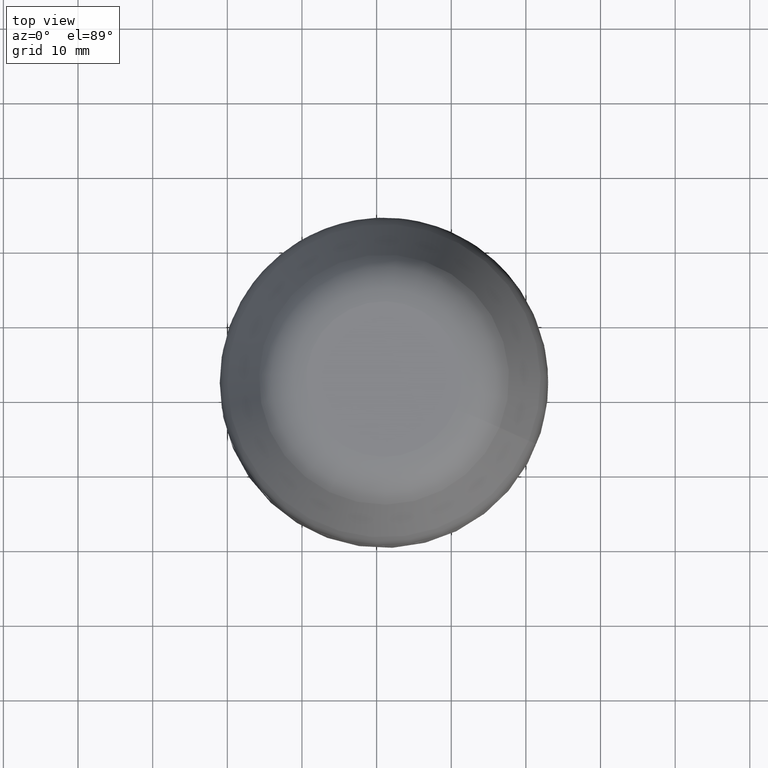
[diagram: clean part render]
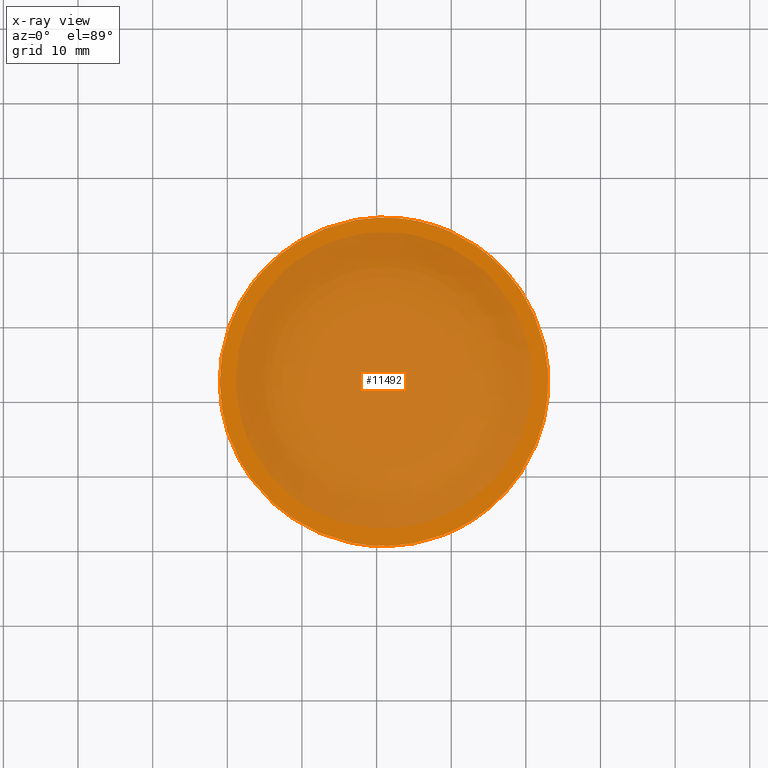
[diagram: x-ray — body ghosted, one internal face saturated and labeled with its STEP entity id]
A machine part, top view, then the same camera in x-ray: the body is ghosted and one INTERNAL B-rep face — a face not visible from any outside direction — is saturated and labeled: STEP entity #11492.
In plain terms, the highlighted face is a freeform B-spline surface patch.
Its self-contained STEP definition (entity closure, byte-faithful):
#73=B_SPLINE_SURFACE_WITH_KNOTS('',3,3,((#82023,#82024,#82025,#82026),(#82027,
#82028,#82029,#82030),(#82031,#82032,#82033,#82034),(#82035,#82036,#82037,
#82038)),.UNSPECIFIED.,.F.,.F.,.F.,(4,4),(4,4),(0.,1.),(0.,1.),.UNSPECIFIED.);
#1144=B_SPLINE_CURVE_WITH_KNOTS('',3,(#81895,#81896,#81897,#81898,#81899,
#81900,#81901,#81902,#81903,#81904,#81905,#81906,#81907,#81908,#81909,#81910,
#81911,#81912,#81913,#81914,#81915,#81916,#81917,#81918,#81919,#81920,#81921,
#81922,#81923,#81924,#81925,#81926,#81927,#81928,#81929,#81930,#81931,#81932,
#81933,#81934,#81935,#81936,#81937,#81938,#81939,#81940,#81941,#81942,#81943,
#81944,#81945,#81946,#81947,#81948,#81949,#81950,#81951,#81952,#81953,#81954,
#81955,#81956,#81957,#81958,#81959,#81960,#81961,#81962,#81963,#81964,#81965,
#81966,#81967,#81968,#81969,#81970,#81971,#81972,#81973,#81974,#81975,#81976,
#81977,#81978,#81979,#81980,#81981,#81982,#81983,#81984,#81985,#81986,#81987,
#81988,#81989,#81990,#81991,#81992,#81993,#81994,#81995,#81996,#81997,#81998,
#81999,#82000,#82001,#82002,#82003,#82004,#82005,#82006,#82007,#82008,#82009,
#82010,#82011,#82012,#82013,#82014,#82015),.UNSPECIFIED.,.T.,.F.,(1,3,3,
3,3,3,3,3,3,3,3,3,3,3,3,3,3,3,3,3,3,3,3,3,3,3,3,3,3,3,3,3,3,3,3,3,3,3,3,
3,3,3,1),(-0.0249999999999999,0.,0.025,0.05,0.075,0.1,0.125,0.15,0.175,0.2,
0.225,0.25,0.275,0.3,0.325,0.35,0.375,0.4,0.425,0.45,0.475,0.5,0.525,0.55,
0.575,0.6,0.625,0.65,0.675,0.7,0.725,0.75,0.775,0.8,0.825,0.85,0.875,0.9,
0.925,0.95,0.975,1.,1.025),.UNSPECIFIED.);
#2825=FACE_OUTER_BOUND('',#14665,.T.);
#11492=ADVANCED_FACE('',(#2825),#73,.F.);
#14665=EDGE_LOOP('',(#24585));
#24585=ORIENTED_EDGE('',*,*,#32807,.T.);
#27847=VERTEX_POINT('',#82016);
#32807=EDGE_CURVE('',#27847,#27847,#1144,.T.);
#81895=CARTESIAN_POINT('',(21.31312004526,-6.6437980327096,-1.60199022897826));
#81896=CARTESIAN_POINT('',(20.7772420391143,-7.93592679038287,-1.60199022897826));
#81897=CARTESIAN_POINT('',(20.1319025196805,-9.15605344206848,-1.60199022897826));
#81898=CARTESIAN_POINT('',(19.3771014869584,-10.3041779877664,-1.60199022897826));
#81899=CARTESIAN_POINT('',(18.9997009705974,-10.8782402606154,-1.60199022897826));
#81900=CARTESIAN_POINT('',(18.5949350759143,-11.4343020069674,-1.60199022897826));
#81901=CARTESIAN_POINT('',(18.1628038029092,-11.9723632268226,-1.60199022897826));
#81902=CARTESIAN_POINT('',(17.9467381664066,-12.2413938367502,-1.60199022897826));
#81903=CARTESIAN_POINT('',(17.7238311853235,-12.5059243150535,-1.60199022897826));
#81904=CARTESIAN_POINT('',(17.4940828596599,-12.7659546617326,-1.60199022897826));
#81905=CARTESIAN_POINT('',(17.2643345339963,-13.0259850084117,-1.60199022897826));
#81906=CARTESIAN_POINT('',(17.0486120902663,-13.2599965948048,-1.60199022897826));
#81907=CARTESIAN_POINT('',(16.7843138489276,-13.5325453068973,-1.60199022897826));
#81908=CARTESIAN_POINT('',(14.6699279182188,-15.7129350036369,-1.60199022897826));
#81909=CARTESIAN_POINT('',(12.2085564467317,-17.3841479077839,-1.60199022897826));
#81910=CARTESIAN_POINT('',(9.40209510386603,-18.5453996332048,-1.60199022897826));
#81911=CARTESIAN_POINT('',(7.99886443243319,-19.1260254959152,-1.60199022897826));
#81912=CARTESIAN_POINT('',(6.56675214008208,-19.5553764509155,-1.60199022897826));
#81913=CARTESIAN_POINT('',(5.10575822681271,-19.8334524982056,-1.60199022897826));
#81914=CARTESIAN_POINT('',(4.37526127017803,-19.9724905218507,-1.60199022897826));
#81915=CARTESIAN_POINT('',(3.63754390831378,-20.0737098185682,-1.60199022897826));
#81916=CARTESIAN_POINT('',(2.89260614121996,-20.1371103883582,-1.60199022897826));
#81917=CARTESIAN_POINT('',(2.52013725767306,-20.1688106732532,-1.60199022897826));
#81918=CARTESIAN_POINT('',(2.14586327281876,-20.1910562764163,-1.60199022897826));
#81919=CARTESIAN_POINT('',(1.76978418665707,-20.2038471978475,-1.60199022897826));
#81920=CARTESIAN_POINT('',(1.39370510049538,-20.2166381192787,-1.60199022897826));
#81921=CARTESIAN_POINT('',(0.985743282523257,-20.2194896778344,-1.60199022897826));
#81922=CARTESIAN_POINT('',(0.636131624249816,-20.2138559169454,-1.60199022897826));
#81923=CARTESIAN_POINT('',(-2.16076164193771,-20.168785829834,-1.60199022897826));
#81924=CARTESIAN_POINT('',(-4.85204995144758,-19.6101695484926,-1.60199022897826));
#81925=CARTESIAN_POINT('',(-7.43597460176658,-18.5387363249538,-1.60199022897826));
#81926=CARTESIAN_POINT('',(-8.72793692692607,-18.0030197131844,-1.60199022897826));
#81927=CARTESIAN_POINT('',(-9.94798036235479,-17.3577608909386,-1.60199022897826));
#81928=CARTESIAN_POINT('',(-11.0961049080527,-16.6029598582166,-1.60199022897826));
#81929=CARTESIAN_POINT('',(-11.6701671809017,-16.2255593418555,-1.60199022897826));
#81930=CARTESIAN_POINT('',(-12.226249731318,-15.8207732728754,-1.60199022897826));
#81931=CARTESIAN_POINT('',(-12.7643525593016,-15.3886016512762,-1.60199022897826));
#81932=CARTESIAN_POINT('',(-13.0334039732934,-15.1725158404766,-1.60199022897826));
#81933=CARTESIAN_POINT('',(-13.297960456677,-14.9495836415223,-1.60199022897826));
#81934=CARTESIAN_POINT('',(-13.5580220094524,-14.7198050544131,-1.60199022897826));
#81935=CARTESIAN_POINT('',(-13.8180835622279,-14.490026467304,-1.60199022897826));
#81936=CARTESIAN_POINT('',(-14.0521731638596,-14.2742283699708,-1.60199022897826));
#81937=CARTESIAN_POINT('',(-14.3247218759543,-14.0099301286214,-1.60199022897826));
#81938=CARTESIAN_POINT('',(-16.5051115727113,-11.8955441978264,-1.60199022897826));
#81939=CARTESIAN_POINT('',(-18.1763244768651,-9.43417272632277,-1.60199022897826));
#81940=CARTESIAN_POINT('',(-19.3375762022618,-6.62771138355981,-1.60199022897826));
#81941=CARTESIAN_POINT('',(-19.9182020649601,-5.22448071217833,-1.60199022897826));
#81942=CARTESIAN_POINT('',(-20.3475530199543,-3.79236841985291,-1.60199022897826));
#81943=CARTESIAN_POINT('',(-20.6256290672444,-2.33137450658354,-1.60199022897826));
#81944=CARTESIAN_POINT('',(-20.7646670908895,-1.60087754994886,-1.60199022897826));
#81945=CARTESIAN_POINT('',(-20.8658863876085,-0.863160188078184,-1.60199022897826));
#81946=CARTESIAN_POINT('',(-20.9292869574015,-0.118222420971527,-1.60199022897826));
#81947=CARTESIAN_POINT('',(-20.960987242298,0.254246462581802,-1.60199022897826));
#81948=CARTESIAN_POINT('',(-20.983232845463,0.628520447444124,-1.60199022897826));
#81949=CARTESIAN_POINT('',(-20.9960237668965,1.00459953361544,-1.60199022897826));
#81950=CARTESIAN_POINT('',(-21.00881468833,1.38067861978677,-1.60199022897826));
#81951=CARTESIAN_POINT('',(-21.0116662468882,1.78864043779152,-1.60199022897826));
#81952=CARTESIAN_POINT('',(-21.0060324860024,2.1382520960564,-1.60199022897826));
#81953=CARTESIAN_POINT('',(-20.960962398916,4.93514536217547,-1.60199022897826));
#81954=CARTESIAN_POINT('',(-20.4023461175177,7.62643367182254,-1.60199022897826));
#81955=CARTESIAN_POINT('',(-19.3309128940108,10.2103583220728,-1.60199022897826));
#81956=CARTESIAN_POINT('',(-18.7951962822573,11.5023206471979,-1.60199022897826));
#81957=CARTESIAN_POINT('',(-18.1499374600196,12.7223640826095,-1.60199022897826));
#81958=CARTESIAN_POINT('',(-17.3951364272975,13.8704886283074,-1.60199022897826));
#81959=CARTESIAN_POINT('',(-17.0177359109365,14.4445509011564,-1.60199022897826));
#81960=CARTESIAN_POINT('',(-16.6129498419543,15.000633451577,-1.60199022897826));
#81961=CARTESIAN_POINT('',(-16.1807782203512,15.5387362795691,-1.60199022897826));
#81962=CARTESIAN_POINT('',(-15.9646924095496,15.8077876935652,-1.60199022897826));
#81963=CARTESIAN_POINT('',(-15.7417602105927,16.0723441769542,-1.60199022897826));
#81964=CARTESIAN_POINT('',(-15.5119816234806,16.3324057297361,-1.60199022897826));
#81965=CARTESIAN_POINT('',(-15.2822030363685,16.592467282518,-1.60199022897826));
#81966=CARTESIAN_POINT('',(-15.0664049390212,16.8265568841678,-1.60199022897826));
#81967=CARTESIAN_POINT('',(-14.8021066976784,17.0991055962605,-1.60199022897826));
#81968=CARTESIAN_POINT('',(-12.6877207669361,19.279495293002,-1.60199022897826));
#81969=CARTESIAN_POINT('',(-10.2263492954931,20.9507081971307,-1.60199022897826));
#81970=CARTESIAN_POINT('',(-7.41988795261679,22.111959922568,-1.60199022897826));
#81971=CARTESIAN_POINT('',(-6.01665728117864,22.6925857852866,-1.60199022897826));
#81972=CARTESIAN_POINT('',(-4.58454498882487,23.121936740291,-1.60199022897826));
#81973=CARTESIAN_POINT('',(-3.12355107555549,23.4000127875811,-1.60199022897826));
#81974=CARTESIAN_POINT('',(-2.3930541189208,23.5390508112261,-1.60199022897826));
#81975=CARTESIAN_POINT('',(-1.65533675705721,23.6402701079426,-1.60199022897826));
#81976=CARTESIAN_POINT('',(-0.910398989964725,23.7036706777306,-1.60199022897826));
#81977=CARTESIAN_POINT('',(-0.537930106418482,23.7353709626245,-1.60199022897826));
#81978=CARTESIAN_POINT('',(-0.163656121565016,23.7576165657863,-1.60199022897826));
#81979=CARTESIAN_POINT('',(0.212422964595677,23.770407487216,-1.60199022897826));
#81980=CARTESIAN_POINT('',(0.58850205075637,23.7831984086457,-1.60199022897826));
#81981=CARTESIAN_POINT('',(0.996463868716586,23.7860499671996,-1.60199022897826));
#81982=CARTESIAN_POINT('',(1.34607552699943,23.7804162063086,-1.60199022897826));
#81983=CARTESIAN_POINT('',(4.14296879326216,23.7353461191808,-1.60199022897826));
#81984=CARTESIAN_POINT('',(6.83425710275326,23.1767298378472,-1.60199022897826));
#81985=CARTESIAN_POINT('',(9.41818175301582,22.105296614317,-1.60199022897826));
#81986=CARTESIAN_POINT('',(10.7101440781471,21.5695800025519,-1.60199022897826));
#81987=CARTESIAN_POINT('',(11.9301875135617,20.9243211803083,-1.60199022897826));
#81988=CARTESIAN_POINT('',(13.0783120592597,20.1695201475862,-1.60199022897826));
#81989=CARTESIAN_POINT('',(13.6523743321086,19.7921196312252,-1.60199022897826));
#81990=CARTESIAN_POINT('',(14.2084568825284,19.3873335622446,-1.60199022897826));
#81991=CARTESIAN_POINT('',(14.7465597105191,18.9551619406443,-1.60199022897826));
#81992=CARTESIAN_POINT('',(15.0156111245144,18.7390761298442,-1.60199022897826));
#81993=CARTESIAN_POINT('',(15.2801676079024,18.5161439308891,-1.60199022897826));
#81994=CARTESIAN_POINT('',(15.5402291606832,18.2863653437792,-1.60199022897826));
#81995=CARTESIAN_POINT('',(15.8002907134639,18.0565867566692,-1.60199022897826));
#81996=CARTESIAN_POINT('',(16.0343803151174,17.8407886593195,-1.60199022897826));
#81997=CARTESIAN_POINT('',(16.3069290272035,17.5764904179846,-1.60199022897826));
#81998=CARTESIAN_POINT('',(18.4873187238923,15.4621044873058,-1.60199022897826));
#81999=CARTESIAN_POINT('',(20.1585316280801,13.0007330157202,-1.60199022897826));
#82000=CARTESIAN_POINT('',(21.319783353511,10.194271672923,-1.60199022897826));
#82001=CARTESIAN_POINT('',(21.9004092162265,8.79104100152444,-1.60199022897826));
#82002=CARTESIAN_POINT('',(22.3297601712293,7.35892870919046,-1.60199022897826));
#82003=CARTESIAN_POINT('',(22.6078362185194,5.89793479592109,-1.60199022897826));
#82004=CARTESIAN_POINT('',(22.7468742421644,5.1674378392864,-1.60199022897826));
#82005=CARTESIAN_POINT('',(22.8480935388813,4.42972047741787,-1.60199022897826));
#82006=CARTESIAN_POINT('',(22.91149410867,3.68478271031549,-1.60199022897826));
#82007=CARTESIAN_POINT('',(22.9431943935644,3.3123138267643,-1.60199022897826));
#82008=CARTESIAN_POINT('',(22.9654399967267,2.93803984190464,-1.60199022897826));
#82009=CARTESIAN_POINT('',(22.978230918157,2.56196075573653,-1.60199022897826));
#82010=CARTESIAN_POINT('',(22.9910218395873,2.18588166956841,-1.60199022897826));
#82011=CARTESIAN_POINT('',(22.9938743319038,1.77797779762299,-1.60199022897826));
#82012=CARTESIAN_POINT('',(22.9882396372517,1.4283081933068,-1.60199022897826));
#82013=CARTESIAN_POINT('',(22.9431620800345,-1.36904864122272,-1.60199022897826));
#82014=CARTESIAN_POINT('',(22.3847888827039,-4.05975071656151,-1.60199022897826));
#82015=CARTESIAN_POINT('',(21.31312004526,-6.6437980327096,-1.60199022897826));
#82016=CARTESIAN_POINT('',(21.3131200452601,-6.64379803270961,-1.60199022897826));
#82023=CARTESIAN_POINT('',(14.0755356970933,-29.8407239670477,-1.60199022897826));
#82024=CARTESIAN_POINT('',(-0.827276380639381,-23.6608666369608,-1.60199022897826));
#82025=CARTESIAN_POINT('',(-15.7300884583673,-17.4810093068759,-1.60199022897826));
#82026=CARTESIAN_POINT('',(-30.6329005361047,-11.301151976787,-1.60199022897826));
#82027=CARTESIAN_POINT('',(20.2553930271801,-14.937911889315,-1.60199022897826));
#82028=CARTESIAN_POINT('',(5.3525809494475,-8.75805455922816,-1.60199022897826));
#82029=CARTESIAN_POINT('',(-9.55023112828042,-2.57819722914323,-1.60199022897826));
#82030=CARTESIAN_POINT('',(-24.4530432060178,3.6016601009456,-1.60199022897826));
#82031=CARTESIAN_POINT('',(26.4352503572651,-0.0350998115871164,-1.60199022897826));
#82032=CARTESIAN_POINT('',(11.5324382795324,6.14475751849977,-1.60199022897826));
#82033=CARTESIAN_POINT('',(-3.37037379819549,12.3246148485847,-1.60199022897826));
#82034=CARTESIAN_POINT('',(-18.2731858759328,18.5044721786735,-1.60199022897826));
#82035=CARTESIAN_POINT('',(32.6151076873539,14.8677122661502,-1.60199022897826));
#82036=CARTESIAN_POINT('',(17.7122956096213,21.0475695962371,-1.60199022897826));
#82037=CARTESIAN_POINT('',(2.80948353189334,27.227426926322,-1.60199022897826));
#82038=CARTESIAN_POINT('',(-12.093328545844,33.4072842564109,-1.60199022897826));